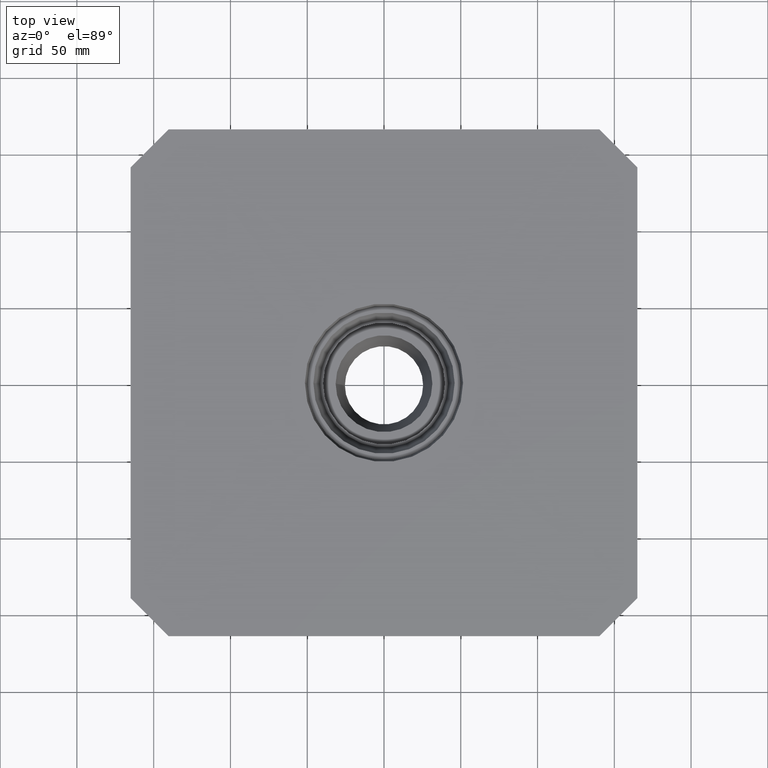
[diagram: clean part render]
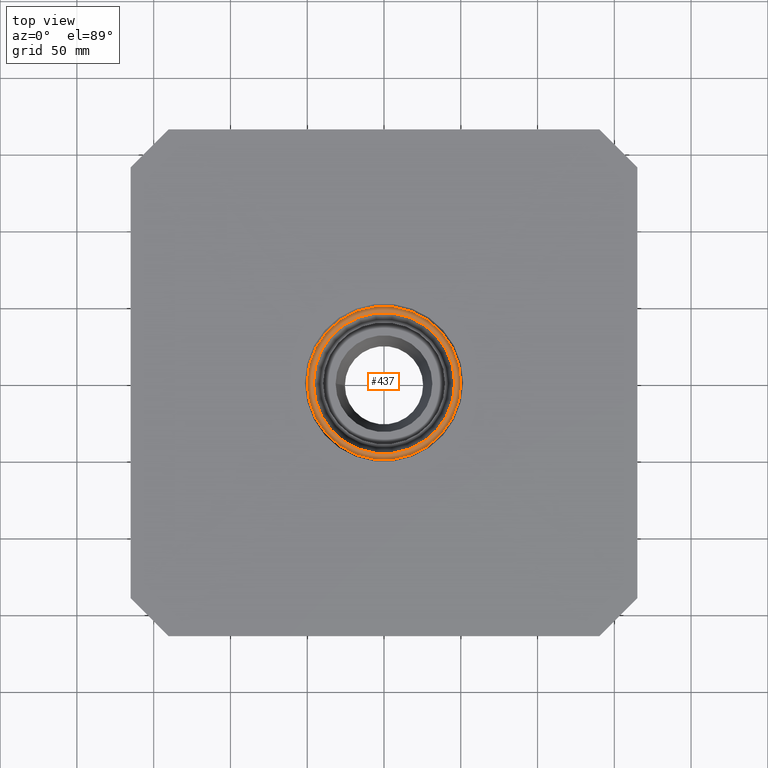
[diagram: same view with one face highlighted and labeled with its STEP entity id]
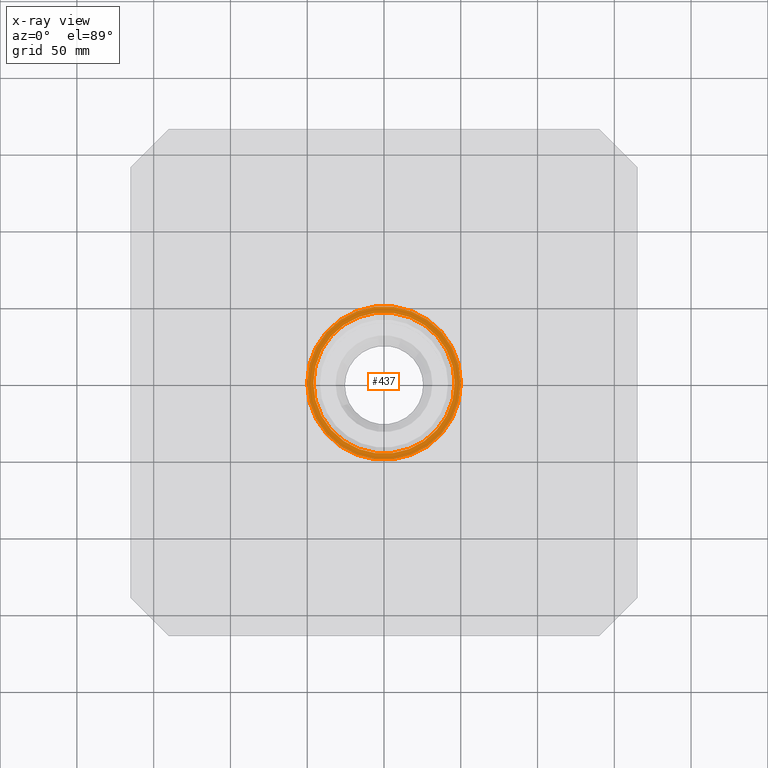
[diagram: x-ray of the same camera — body ghosted, the highlighted face saturated]
A machine part, top view. The second image highlights one B-rep face of the part: STEP entity #437.
The next image is the same camera in x-ray: the body ghosted, the highlighted face saturated — about 0% of this face is hidden behind the body in this view.
In plain terms, the highlighted planar face has unit normal (0, 0, 1).
Its self-contained STEP definition (entity closure, byte-faithful):
#34=CIRCLE('',#488,50.);
#35=CIRCLE('',#490,46.);
#100=ORIENTED_EDGE('',*,*,#186,.T.);
#101=ORIENTED_EDGE('',*,*,#185,.F.);
#185=EDGE_CURVE('',#225,#225,#34,.T.);
#186=EDGE_CURVE('',#226,#226,#35,.T.);
#225=VERTEX_POINT('',#732);
#226=VERTEX_POINT('',#735);
#308=EDGE_LOOP('',(#100));
#309=EDGE_LOOP('',(#101));
#366=FACE_BOUND('',#308,.T.);
#367=FACE_BOUND('',#309,.T.);
#417=PLANE('',#489);
#437=ADVANCED_FACE('',(#366,#367),#417,.T.);
#488=AXIS2_PLACEMENT_3D('',#731,#588,#589);
#489=AXIS2_PLACEMENT_3D('',#733,#590,#591);
#490=AXIS2_PLACEMENT_3D('',#734,#592,#593);
#588=DIRECTION('',(0.,0.,-1.));
#589=DIRECTION('',(-1.,0.,0.));
#590=DIRECTION('',(0.,0.,1.));
#591=DIRECTION('',(1.,0.,0.));
#592=DIRECTION('',(0.,0.,-1.));
#593=DIRECTION('',(-1.,0.,0.));
#731=CARTESIAN_POINT('',(0.,0.,-12.));
#732=CARTESIAN_POINT('',(-50.,0.,-12.));
#733=CARTESIAN_POINT('',(-50.,0.,-12.));
#734=CARTESIAN_POINT('',(0.,0.,-12.));
#735=CARTESIAN_POINT('',(-46.,0.,-12.));